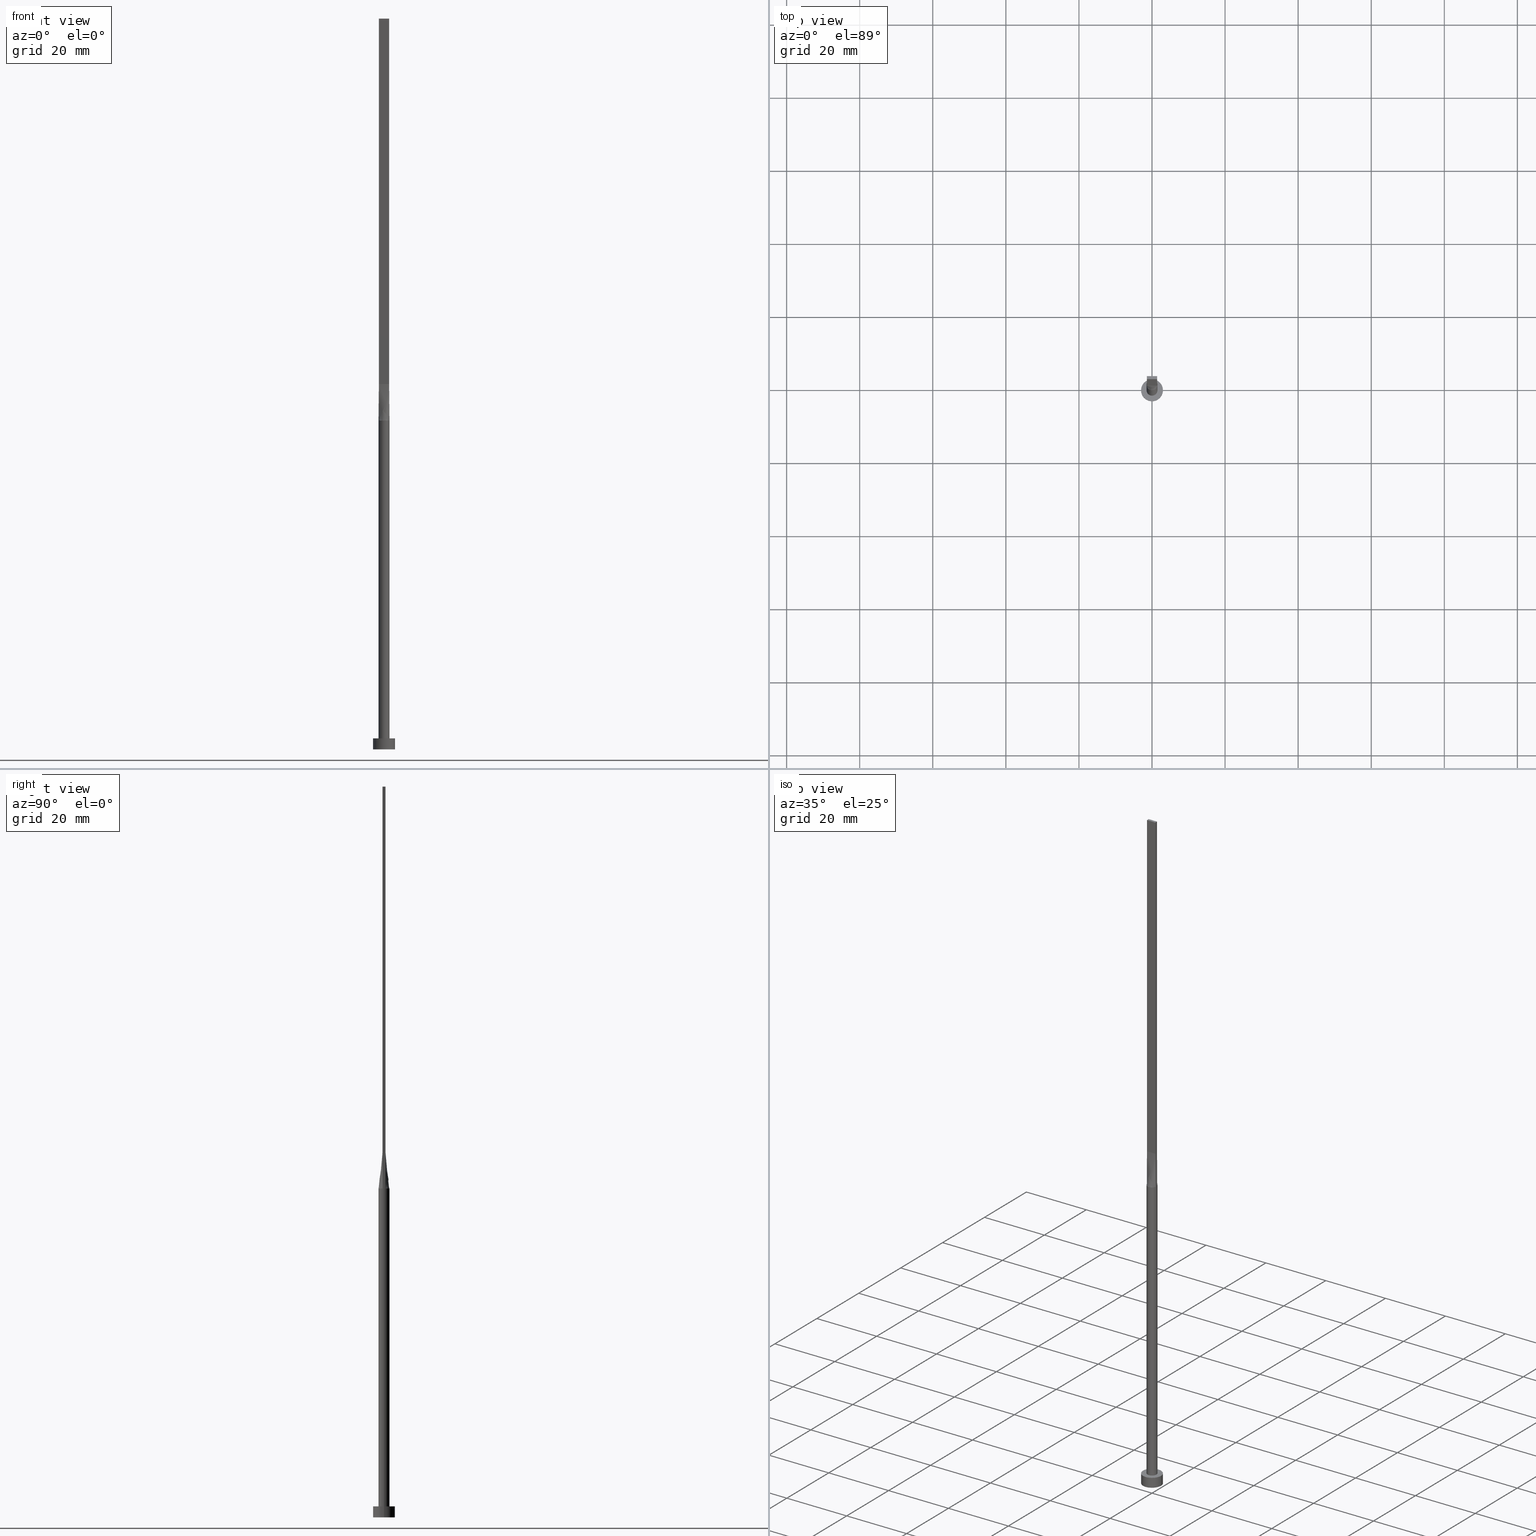
[diagram: canonical four-view strip — front | top / right | iso, engineering-drawing reading convention]
A machine part, canonical four-view strip (front | top / right | iso — engineering-drawing reading convention). The complete STEP part file that produces these views, byte-faithful:
ISO-10303-21;
HEADER;
FILE_DESCRIPTION (( 'STEP AP203' ),
    '1' );
FILE_NAME ('a83f.STEP',
    '2026-02-12T09:08:21',
    ( '' ),
    ( '' ),
    'SwSTEP 2.0',
    'SolidWorks 2019',
    '' );
FILE_SCHEMA (( 'CONFIG_CONTROL_DESIGN' ));
ENDSEC;

DATA;
#1 = DIRECTION ( 'NONE',  ( 0.000000000000000000, 0.000000000000000000, 1.000000000000000000 ) ) ;
#2 = CARTESIAN_POINT ( 'NONE',  ( 0.000000000000000000, 0.000000000000000000, 3.000000000000000000 ) ) ;
#3 = CARTESIAN_POINT ( 'NONE',  ( 0.4666666666666672292, 0.4000000000000001887, 99.99999999999997158 ) ) ;
#4 = DIRECTION ( 'NONE',  ( 1.000000000000000000, 0.000000000000000000, -0.000000000000000000 ) ) ;
#5 = SHAPE_DEFINITION_REPRESENTATION ( #48, #59 ) ;
#6 = DIRECTION ( 'NONE',  ( -2.710505431213761578E-16, -1.000000000000000000, 0.000000000000000000 ) ) ;
#7 = FACE_OUTER_BOUND ( 'NONE', #328, .T. ) ;
#8 = CARTESIAN_POINT ( 'NONE',  ( 1.399999999999999689, 0.4000000000000002442, 99.99999999999998579 ) ) ;
#9 = EDGE_LOOP ( 'NONE', ( #295, #249, #155, #174, #18, #116 ) ) ;
#10 = VECTOR ( 'NONE', #94, 1000.000000000000000 ) ;
#11 = CARTESIAN_POINT ( 'NONE',  ( -1.442387148345315895, 0.4121110244020492197, 90.00000000000000000 ) ) ;
#12 = CARTESIAN_POINT ( 'NONE',  ( -3.000000000000000444, 0.000000000000000000, 0.000000000000000000 ) ) ;
#13 = DIRECTION ( 'NONE',  ( 0.000000000000000000, 0.000000000000000000, 1.000000000000000000 ) ) ;
#14 = CARTESIAN_POINT ( 'NONE',  ( 3.000000000000000444, 3.673940397442060361E-16, 0.000000000000000000 ) ) ;
#15 = ORIENTED_EDGE ( 'NONE', *, *, #384, .T. ) ;
#16 = CIRCLE ( 'NONE', #261, 3.000000000000000444 ) ;
#17 = DIRECTION ( 'NONE',  ( -0.000000000000000000, -0.000000000000000000, -1.000000000000000000 ) ) ;
#18 = ORIENTED_EDGE ( 'NONE', *, *, #268, .T. ) ;
#19 = ORIENTED_EDGE ( 'NONE', *, *, #185, .T. ) ;
#20 = CARTESIAN_POINT ( 'NONE',  ( -1.480021770517838231, 0.2800062201479542878, 89.99999999999998579 ) ) ;
#21 = CC_DESIGN_PERSON_AND_ORGANIZATION_ASSIGNMENT ( #29, #379, ( #545 ) ) ;
#22 = VECTOR ( 'NONE', #478, 1000.000000000000000 ) ;
#23 = ORIENTED_EDGE ( 'NONE', *, *, #173, .T. ) ;
#24 = DIRECTION ( 'NONE',  ( 0.000000000000000000, 0.000000000000000000, 1.000000000000000000 ) ) ;
#25 = CARTESIAN_POINT ( 'NONE',  ( 0.1166666666666677510, -0.3999999999999996336, 99.99999999999995737 ) ) ;
#26 = PERSON_AND_ORGANIZATION ( #509, #394 ) ;
#27 = CARTESIAN_POINT ( 'NONE',  ( 3.000000000000000444, 3.673940397442060361E-16, 3.000000000000000000 ) ) ;
#28 = CARTESIAN_POINT ( 'NONE',  ( 0.7158926189626801939, -1.330660769095147744, 90.00000000000001421 ) ) ;
#29 = PERSON_AND_ORGANIZATION ( #509, #394 ) ;
#30 = ORIENTED_EDGE ( 'NONE', *, *, #529, .F. ) ;
#31 = ORIENTED_EDGE ( 'NONE', *, *, #146, .F. ) ;
#32 = CARTESIAN_POINT ( 'NONE',  ( -0.5833333333333319271, -0.3999999999999996336, 99.99999999999997158 ) ) ;
#33 = PERSON_AND_ORGANIZATION ( #509, #394 ) ;
#34 = CARTESIAN_POINT ( 'NONE',  ( -0.8166666666666654306, -0.3999999999999996336, 99.99999999999997158 ) ) ;
#35 = VECTOR ( 'NONE', #515, 1000.000000000000000 ) ;
#36 = ORIENTED_EDGE ( 'NONE', *, *, #268, .F. ) ;
#37 = ADVANCED_FACE ( 'NONE', ( #315 ), #267, .T. ) ;
#38 = DATE_TIME_ROLE ( 'creation_date' ) ;
#39 = CIRCLE ( 'NONE', #375, 3.000000000000000444 ) ;
#40 = DIRECTION ( 'NONE',  ( -0.000000000000000000, -0.000000000000000000, -1.000000000000000000 ) ) ;
#41 = CARTESIAN_POINT ( 'NONE',  ( -0.5833333333333325932, 0.4000000000000001887, 99.99999999999997158 ) ) ;
#42 = ADVANCED_FACE ( 'NONE', ( #350 ), #95, .T. ) ;
#43 = VECTOR ( 'NONE', #89, 1000.000000000000000 ) ;
#44 = AXIS2_PLACEMENT_3D ( 'NONE', #114, #469, #323 ) ;
#45 = CARTESIAN_POINT ( 'NONE',  ( 1.399999999999999911, -0.2666666666666642760, 99.99999999999997158 ) ) ;
#46 = PLANE ( 'NONE',  #47 ) ;
#47 = AXIS2_PLACEMENT_3D ( 'NONE', #499, #398, #4 ) ;
#48 = PRODUCT_DEFINITION_SHAPE ( 'NONE', 'NONE',  #579 ) ;
#49 = CARTESIAN_POINT ( 'NONE',  ( -1.500000000000000222, 0.000000000000000000, 90.00000000000000000 ) ) ;
#50 = LINE ( 'NONE', #439, #189 ) ;
#51 = ADVANCED_FACE ( 'NONE', ( #388 ), #527, .T. ) ;
#52 = FACE_OUTER_BOUND ( 'NONE', #410, .T. ) ;
#53 = ORIENTED_EDGE ( 'NONE', *, *, #294, .F. ) ;
#54 = CARTESIAN_POINT ( 'NONE',  ( -1.399999999999999689, 0.4000000000000002442, 200.0000000000000000 ) ) ;
#55 = CARTESIAN_POINT ( 'NONE',  ( -1.442285921461235132, -0.4120816918460665224, 90.00000000000000000 ) ) ;
#56 = CARTESIAN_POINT ( 'NONE',  ( -1.399999999999999689, 0.4000000000000002442, 200.0000000000000000 ) ) ;
#57 = DIRECTION ( 'NONE',  ( 1.000000000000000000, -5.808225924029488744E-17, 0.000000000000000000 ) ) ;
#58 = VECTOR ( 'NONE', #523, 1000.000000000000000 ) ;
#59 = ADVANCED_BREP_SHAPE_REPRESENTATION ( 'a83f', ( #566, #463 ), #113 ) ;
#60 = APPROVAL_PERSON_ORGANIZATION ( #33, #301, #383 ) ;
#61 = CARTESIAN_POINT ( 'NONE',  ( -0.1885753531885899226, 1.500000000000000888, 90.00000000000001421 ) ) ;
#62 = ORIENTED_EDGE ( 'NONE', *, *, #518, .F. ) ;
#63 = CARTESIAN_POINT ( 'NONE',  ( -1.212111761082482975, 0.8950936653899578266, 90.00000000000002842 ) ) ;
#64 = CC_DESIGN_PERSON_AND_ORGANIZATION_ASSIGNMENT ( #69, #436, ( #229 ) ) ;
#65 = CARTESIAN_POINT ( 'NONE',  ( 1.166666666666666963, -0.3999999999999997446, 99.99999999999997158 ) ) ;
#66 = ORIENTED_EDGE ( 'NONE', *, *, #540, .T. ) ;
#67 = ORIENTED_EDGE ( 'NONE', *, *, #325, .F. ) ;
#68 = CARTESIAN_POINT ( 'NONE',  ( 1.399999999999999689, 0.4000000000000002442, 200.0000000000000000 ) ) ;
#69 = PERSON_AND_ORGANIZATION ( #509, #394 ) ;
#70 = EDGE_CURVE ( 'NONE', #302, #371, #222, .T. ) ;
#71 = CARTESIAN_POINT ( 'NONE',  ( 0.1885753531885901724, 1.500000000000000666, 90.00000000000001421 ) ) ;
#72 = VECTOR ( 'NONE', #332, 1000.000000000000000 ) ;
#73 = VERTEX_POINT ( 'NONE', #134 ) ;
#74 = DIRECTION ( 'NONE',  ( -0.000000000000000000, -0.000000000000000000, -1.000000000000000000 ) ) ;
#75 = CARTESIAN_POINT ( 'NONE',  ( 0.2333333333333345305, -0.3999999999999996891, 99.99999999999997158 ) ) ;
#76 = CALENDAR_DATE ( 2026, 12, 2 ) ;
#77 = CIRCLE ( 'NONE', #161, 1.500000000000000222 ) ;
#78 = ORIENTED_EDGE ( 'NONE', *, *, #224, .F. ) ;
#79 = LINE ( 'NONE', #27, #22 ) ;
#80 = DIRECTION ( 'NONE',  ( 1.000000000000000000, 0.000000000000000000, 0.000000000000000000 ) ) ;
#81 = APPLICATION_PROTOCOL_DEFINITION ( 'international standard', 'config_control_design', 1994, #453 ) ;
#82 = DIRECTION ( 'NONE',  ( 0.000000000000000000, 0.000000000000000000, 1.000000000000000000 ) ) ;
#83 = EDGE_CURVE ( 'NONE', #506, #557, #310, .T. ) ;
#84 = CIRCLE ( 'NONE', #442, 1.500000000000000222 ) ;
#85 = B_SPLINE_SURFACE_WITH_KNOTS ( 'NONE', 3, 1, ( 
 ( #188, #489 ),
 ( #441, #45 ),
 ( #230, #449 ),
 ( #395, #356 ),
 ( #101, #181 ),
 ( #541, #90 ) ),
 .UNSPECIFIED., .F., .F., .F.,
 ( 4, 2, 4 ),
 ( 2, 2 ),
 ( 0.000000000000000000, 0.5000000000000000000, 1.000000000000000000 ),
 ( 0.000000000000000000, 1.000000000000000000 ),
 .UNSPECIFIED. ) ;
#86 = CARTESIAN_POINT ( 'NONE',  ( 1.442285921461234910, -0.4120816918460670220, 90.00000000000000000 ) ) ;
#87 = CARTESIAN_POINT ( 'NONE',  ( 0.000000000000000000, 0.000000000000000000, 90.00000000000000000 ) ) ;
#88 = CARTESIAN_POINT ( 'NONE',  ( 0.000000000000000000, 0.000000000000000000, 3.000000000000000000 ) ) ;
#89 = DIRECTION ( 'NONE',  ( -0.000000000000000000, -0.000000000000000000, -1.000000000000000000 ) ) ;
#90 = CARTESIAN_POINT ( 'NONE',  ( 1.399999999999999689, 0.4000000000000002442, 99.99999999999998579 ) ) ;
#91 = ADVANCED_FACE ( 'NONE', ( #387 ), #443, .T. ) ;
#92 = B_SPLINE_CURVE_WITH_KNOTS ( 'NONE', 3,
 ( #193, #362, #151, #465, #372, #104, #319, #454, #196, #61, #290, #507, #321, #199, #63, #508, #111, #512 ),
 .UNSPECIFIED., .F., .F.,
 ( 4, 2, 2, 2, 2, 2, 2, 2, 4 ),
 ( 0.000000000000000000, 0.1250000000000000833, 0.2500000000000001665, 0.3750000000000001110, 0.5000000000000001110, 0.6250000000000002220, 0.7500000000000001110, 0.8750000000000001110, 1.000000000000000000 ),
 .UNSPECIFIED. ) ;
#93 = LINE ( 'NONE', #274, #207 ) ;
#94 = DIRECTION ( 'NONE',  ( 0.004228551254826032335, -0.001208157501378839338, 0.9999903298081123104 ) ) ;
#95 = CYLINDRICAL_SURFACE ( 'NONE', #275, 1.500000000000000222 ) ;
#96 = CARTESIAN_POINT ( 'NONE',  ( 1.399999999999999689, 0.4000000000000002442, 99.99999999999998579 ) ) ;
#97 = CIRCLE ( 'NONE', #242, 1.500000000000000222 ) ;
#98 = CARTESIAN_POINT ( 'NONE',  ( 0.9333333333333333481, 0.4000000000000001332, 99.99999999999995737 ) ) ;
#99 = CARTESIAN_POINT ( 'NONE',  ( -1.212111761082482975, 0.8950936653899578266, 90.00000000000002842 ) ) ;
#100 = CARTESIAN_POINT ( 'NONE',  ( 1.212111761082483197, 0.8950936653899574935, 89.99999999999998579 ) ) ;
#101 = CARTESIAN_POINT ( 'NONE',  ( 1.480021770517838897, 0.2800062201479540103, 90.00000000000000000 ) ) ;
#102 = EDGE_CURVE ( 'NONE', #371, #197, #97, .T. ) ;
#103 = CARTESIAN_POINT ( 'NONE',  ( -0.9333333333333326820, 0.4000000000000001887, 99.99999999999997158 ) ) ;
#104 = CARTESIAN_POINT ( 'NONE',  ( 0.8665786268839186235, 1.235433898681765008, 90.00000000000000000 ) ) ;
#105 = CC_DESIGN_APPROVAL ( #369, ( #229 ) ) ;
#106 = CARTESIAN_POINT ( 'NONE',  ( -0.7158926189626803049, 1.330660769095148410, 90.00000000000001421 ) ) ;
#107 = CARTESIAN_POINT ( 'NONE',  ( -1.399999999999999689, 0.4000000000000002442, 200.0000000000000000 ) ) ;
#108 = EDGE_CURVE ( 'NONE', #209, #218, #77, .T. ) ;
#109 = CARTESIAN_POINT ( 'NONE',  ( 1.399999999999999911, -0.3999999999999998002, 200.0000000000000000 ) ) ;
#110 = UNCERTAINTY_MEASURE_WITH_UNIT (LENGTH_MEASURE( 1.000000000000000082E-05 ), #307, 'distance_accuracy_value', 'NONE');
#111 = CARTESIAN_POINT ( 'NONE',  ( -1.409267053536706671, 0.5276477295819163027, 90.00000000000001421 ) ) ;
#112 = CARTESIAN_POINT ( 'NONE',  ( 0.000000000000000000, 0.000000000000000000, 3.000000000000000000 ) ) ;
#113 =( GEOMETRIC_REPRESENTATION_CONTEXT ( 3 ) GLOBAL_UNCERTAINTY_ASSIGNED_CONTEXT ( ( #110 ) ) GLOBAL_UNIT_ASSIGNED_CONTEXT ( ( #307, #528, #270 ) ) REPRESENTATION_CONTEXT ( 'NONE', 'WORKASPACE' ) );
#114 = CARTESIAN_POINT ( 'NONE',  ( -1.399999999999999689, 0.4000000000000002442, 200.0000000000000000 ) ) ;
#115 = CARTESIAN_POINT ( 'NONE',  ( 1.409267053536706671, -0.5276477295819165247, 90.00000000000001421 ) ) ;
#116 = ORIENTED_EDGE ( 'NONE', *, *, #553, .T. ) ;
#117 = ORIENTED_EDGE ( 'NONE', *, *, #102, .T. ) ;
#118 = LINE ( 'NONE', #211, #320 ) ;
#119 = ORIENTED_EDGE ( 'NONE', *, *, #511, .F. ) ;
#120 = DIRECTION ( 'NONE',  ( 1.000000000000000000, 0.000000000000000000, 0.000000000000000000 ) ) ;
#121 = CARTESIAN_POINT ( 'NONE',  ( 1.359280768448766663, -0.6502025712814719638, 90.00000000000001421 ) ) ;
#122 = AXIS2_PLACEMENT_3D ( 'NONE', #334, #427, #517 ) ;
#123 = VERTEX_POINT ( 'NONE', #54 ) ;
#124 = ORIENTED_EDGE ( 'NONE', *, *, #536, .F. ) ;
#125 = LINE ( 'NONE', #338, #58 ) ;
#126 = CARTESIAN_POINT ( 'NONE',  ( 0.8166666666666670960, -0.3999999999999997446, 99.99999999999997158 ) ) ;
#127 = APPROVAL_STATUS ( 'not_yet_approved' ) ;
#128 = EDGE_LOOP ( 'NONE', ( #53, #214, #117, #36, #550, #159 ) ) ;
#129 = CIRCLE ( 'NONE', #516, 1.500000000000000222 ) ;
#130 = ORIENTED_EDGE ( 'NONE', *, *, #250, .F. ) ;
#131 = CARTESIAN_POINT ( 'NONE',  ( 0.000000000000000000, 0.000000000000000000, 0.000000000000000000 ) ) ;
#132 = CARTESIAN_POINT ( 'NONE',  ( -1.399999999999999911, -0.3999999999999996336, 99.99999999999998579 ) ) ;
#133 = EDGE_CURVE ( 'NONE', #152, #380, #16, .T. ) ;
#134 = CARTESIAN_POINT ( 'NONE',  ( -1.500000000000000222, 8.735352324927310277E-17, 90.00000000000000000 ) ) ;
#135 = PERSON_AND_ORGANIZATION ( #509, #394 ) ;
#136 = DIRECTION ( 'NONE',  ( -0.000000000000000000, -0.000000000000000000, -1.000000000000000000 ) ) ;
#137 = DIRECTION ( 'NONE',  ( -1.000000000000000000, 0.000000000000000000, 0.000000000000000000 ) ) ;
#138 = CARTESIAN_POINT ( 'NONE',  ( 1.442285921461234910, 0.4120816918460671330, 90.00000000000000000 ) ) ;
#139 = CARTESIAN_POINT ( 'NONE',  ( -0.8166666666666659857, 0.4000000000000001887, 99.99999999999997158 ) ) ;
#140 = DIRECTION ( 'NONE',  ( 1.000000000000000000, 0.000000000000000000, 0.000000000000000000 ) ) ;
#141 = DIRECTION ( 'NONE',  ( 5.808225924029488744E-17, 1.000000000000000000, -0.000000000000000000 ) ) ;
#142 = ORIENTED_EDGE ( 'NONE', *, *, #511, .T. ) ;
#143 = CARTESIAN_POINT ( 'NONE',  ( 0.000000000000000000, 0.000000000000000000, 90.00000000000000000 ) ) ;
#144 = CARTESIAN_POINT ( 'NONE',  ( -1.399999999999999911, -0.3999999999999996336, 99.99999999999998579 ) ) ;
#145 = CARTESIAN_POINT ( 'NONE',  ( -0.8665786268839184014, 1.235433898681765896, 90.00000000000001421 ) ) ;
#146 = EDGE_CURVE ( 'NONE', #381, #557, #406, .T. ) ;
#147 = CARTESIAN_POINT ( 'NONE',  ( -1.399999999999999689, -0.1333333333333329429, 99.99999999999997158 ) ) ;
#148 = CIRCLE ( 'NONE', #411, 1.500000000000000222 ) ;
#149 = ORIENTED_EDGE ( 'NONE', *, *, #83, .T. ) ;
#150 = ORIENTED_EDGE ( 'NONE', *, *, #325, .T. ) ;
#151 = CARTESIAN_POINT ( 'NONE',  ( 1.359280768448766663, 0.6502025712814714087, 89.99999999999998579 ) ) ;
#152 = VERTEX_POINT ( 'NONE', #12 ) ;
#153 = FACE_OUTER_BOUND ( 'NONE', #240, .T. ) ;
#154 = DIRECTION ( 'NONE',  ( 1.000000000000000000, -5.808225924029488744E-17, 0.000000000000000000 ) ) ;
#155 = ORIENTED_EDGE ( 'NONE', *, *, #108, .F. ) ;
#156 = CC_DESIGN_SECURITY_CLASSIFICATION ( #545, ( #229 ) ) ;
#157 = ADVANCED_FACE ( 'NONE', ( #7 ), #503, .F. ) ;
#158 = DESIGN_CONTEXT ( 'detailed design', #453, 'design' ) ;
#159 = ORIENTED_EDGE ( 'NONE', *, *, #384, .F. ) ;
#160 = DIRECTION ( 'NONE',  ( 1.000000000000000000, 5.329070518200751394E-15, 0.000000000000000000 ) ) ;
#161 = AXIS2_PLACEMENT_3D ( 'NONE', #87, #500, #404 ) ;
#162 = ORIENTED_EDGE ( 'NONE', *, *, #83, .F. ) ;
#163 = ORIENTED_EDGE ( 'NONE', *, *, #272, .T. ) ;
#164 = LINE ( 'NONE', #303, #504 ) ;
#165 = CARTESIAN_POINT ( 'NONE',  ( 0.5833333333333342585, -0.3999999999999997446, 99.99999999999997158 ) ) ;
#166 = DATE_AND_TIME ( #389, #382 ) ;
#167 = CARTESIAN_POINT ( 'NONE',  ( 0.2333333333333343085, 0.4000000000000001887, 99.99999999999995737 ) ) ;
#168 = ORIENTED_EDGE ( 'NONE', *, *, #250, .T. ) ;
#169 = CARTESIAN_POINT ( 'NONE',  ( 0.000000000000000000, 0.000000000000000000, 90.00000000000000000 ) ) ;
#170 = CALENDAR_DATE ( 2026, 12, 2 ) ;
#171 = APPROVAL_PERSON_ORGANIZATION ( #135, #456, #569 ) ;
#172 = VERTEX_POINT ( 'NONE', #364 ) ;
#173 = EDGE_CURVE ( 'NONE', #73, #209, #470, .T. ) ;
#174 = ORIENTED_EDGE ( 'NONE', *, *, #173, .F. ) ;
#175 = DATE_AND_TIME ( #386, #257 ) ;
#176 = DIRECTION ( 'NONE',  ( -0.000000000000000000, -0.000000000000000000, -1.000000000000000000 ) ) ;
#177 = CC_DESIGN_PERSON_AND_ORGANIZATION_ASSIGNMENT ( #263, #264, ( #229 ) ) ;
#178 = CARTESIAN_POINT ( 'NONE',  ( -0.8665786268839192896, -1.235433898681764786, 90.00000000000000000 ) ) ;
#179 = DIRECTION ( 'NONE',  ( 1.000000000000000000, 0.000000000000000000, 0.000000000000000000 ) ) ;
#180 = DIRECTION ( 'NONE',  ( -2.710505431213761085E-16, 1.000000000000000000, -0.000000000000000000 ) ) ;
#181 = CARTESIAN_POINT ( 'NONE',  ( 1.399999999999999689, 0.2666666666666690499, 99.99999999999997158 ) ) ;
#182 = CARTESIAN_POINT ( 'NONE',  ( 1.359280768448766663, 0.6502025712814714087, 89.99999999999998579 ) ) ;
#183 = CARTESIAN_POINT ( 'NONE',  ( -1.114527776139989212, 1.017390422009414319, 90.00000000000004263 ) ) ;
#184 = DIRECTION ( 'NONE',  ( -1.000000000000000000, 5.808225924029488744E-17, 0.000000000000000000 ) ) ;
#185 = EDGE_CURVE ( 'NONE', #123, #385, #192, .T. ) ;
#186 = DIRECTION ( 'NONE',  ( 1.000000000000000000, 0.000000000000000000, 0.000000000000000000 ) ) ;
#187 = CARTESIAN_POINT ( 'NONE',  ( 0.8665786268839186235, 1.235433898681765008, 90.00000000000000000 ) ) ;
#188 = CARTESIAN_POINT ( 'NONE',  ( 1.442285921461234688, -0.4120816918460675771, 90.00000000000000000 ) ) ;
#189 = VECTOR ( 'NONE', #349, 1000.000000000000000 ) ;
#190 = PRODUCT_RELATED_PRODUCT_CATEGORY ( 'detail', '', ( #397 ) ) ;
#191 = DIRECTION ( 'NONE',  ( 0.000000000000000000, 0.000000000000000000, 1.000000000000000000 ) ) ;
#192 = LINE ( 'NONE', #56, #539 ) ;
#193 = CARTESIAN_POINT ( 'NONE',  ( 1.442362338805188937, 0.4121038472597355895, 90.00000000000000000 ) ) ;
#194 = AXIS2_PLACEMENT_3D ( 'NONE', #549, #246, #547 ) ;
#195 = PLANE ( 'NONE',  #484 ) ;
#196 = CARTESIAN_POINT ( 'NONE',  ( 0.1885753531885901724, 1.500000000000000666, 90.00000000000001421 ) ) ;
#197 = VERTEX_POINT ( 'NONE', #407 ) ;
#198 = DATE_AND_TIME ( #292, #435 ) ;
#199 = CARTESIAN_POINT ( 'NONE',  ( -1.114527776139989212, 1.017390422009414319, 90.00000000000004263 ) ) ;
#200 = ADVANCED_FACE ( 'NONE', ( #360 ), #195, .F. ) ;
#201 = CARTESIAN_POINT ( 'NONE',  ( -1.399999999999999689, 0.2666666666666668850, 99.99999999999997158 ) ) ;
#202 = VECTOR ( 'NONE', #367, 1000.000000000000000 ) ;
#203 = CARTESIAN_POINT ( 'NONE',  ( -0.3767059690781846548, 1.463302066271692015, 90.00000000000000000 ) ) ;
#204 = CIRCLE ( 'NONE', #446, 3.000000000000000444 ) ;
#205 = CARTESIAN_POINT ( 'NONE',  ( 0.000000000000000000, 0.000000000000000000, 3.000000000000000000 ) ) ;
#206 = COORDINATED_UNIVERSAL_TIME_OFFSET ( 1, 0, .AHEAD. ) ;
#207 = VECTOR ( 'NONE', #6, 1000.000000000000000 ) ;
#208 = CC_DESIGN_PERSON_AND_ORGANIZATION_ASSIGNMENT ( #26, #213, ( #397 ) ) ;
#209 = VERTEX_POINT ( 'NONE', #228 ) ;
#210 = ORIENTED_EDGE ( 'NONE', *, *, #536, .T. ) ;
#211 = CARTESIAN_POINT ( 'NONE',  ( 1.399999999999999689, 0.4000000000000002442, 200.0000000000000000 ) ) ;
#212 = CARTESIAN_POINT ( 'NONE',  ( 0.9333333333333337922, -0.3999999999999997446, 99.99999999999997158 ) ) ;
#213 = PERSON_AND_ORGANIZATION_ROLE ( 'design_owner' ) ;
#214 = ORIENTED_EDGE ( 'NONE', *, *, #70, .T. ) ;
#215 = ORIENTED_EDGE ( 'NONE', *, *, #574, .T. ) ;
#216 = APPROVAL_STATUS ( 'not_yet_approved' ) ;
#217 = VECTOR ( 'NONE', #564, 1000.000000000000000 ) ;
#218 = VERTEX_POINT ( 'NONE', #578 ) ;
#219 = CARTESIAN_POINT ( 'NONE',  ( 1.399999999999999911, -0.3999999999999998002, 99.99999999999998579 ) ) ;
#220 = PERSON_AND_ORGANIZATION_ROLE ( 'creator' ) ;
#221 = AXIS2_PLACEMENT_3D ( 'NONE', #289, #13, #460 ) ;
#222 = LINE ( 'NONE', #269, #43 ) ;
#223 = APPLICATION_PROTOCOL_DEFINITION ( 'international standard', 'config_control_design', 1994, #447 ) ;
#224 = EDGE_CURVE ( 'NONE', #482, #381, #391, .T. ) ;
#225 = CARTESIAN_POINT ( 'NONE',  ( -1.212111761082483863, -0.8950936653899566053, 89.99999999999998579 ) ) ;
#226 = DIRECTION ( 'NONE',  ( 0.000000000000000000, -0.000000000000000000, -1.000000000000000000 ) ) ;
#227 = CARTESIAN_POINT ( 'NONE',  ( 1.399999999999999689, 0.4000000000000002442, 200.0000000000000000 ) ) ;
#228 = CARTESIAN_POINT ( 'NONE',  ( -1.442368678646663405, -0.4121057215347019853, 90.00000000000000000 ) ) ;
#229 = PRODUCT_DEFINITION_FORMATION_WITH_SPECIFIED_SOURCE ( 'LIBOVOLN�', '', #397, .NOT_KNOWN. ) ;
#230 = CARTESIAN_POINT ( 'NONE',  ( 1.500000000000000222, -0.1400549446402594711, 90.00000000000001421 ) ) ;
#231 = CARTESIAN_POINT ( 'NONE',  ( -1.399999999999999911, -0.3999999999999996336, 200.0000000000000000 ) ) ;
#232 = B_SPLINE_SURFACE_WITH_KNOTS ( 'NONE', 3, 1, ( 
 ( #138, #96 ),
 ( #491, #396 ),
 ( #182, #316 ),
 ( #100, #98 ),
 ( #402, #277 ),
 ( #187, #444 ),
 ( #448, #3 ),
 ( #476, #167 ),
 ( #71, #420 ),
 ( #425, #298 ),
 ( #203, #472 ),
 ( #106, #282 ),
 ( #145, #41 ),
 ( #183, #139 ),
 ( #99, #103 ),
 ( #352, #531 ),
 ( #273, #318 ),
 ( #580, #234 ) ),
 .UNSPECIFIED., .F., .F., .F.,
 ( 4, 2, 2, 2, 2, 2, 2, 2, 4 ),
 ( 2, 2 ),
 ( 0.000000000000000000, 0.1250000000000000833, 0.2500000000000001665, 0.3750000000000001110, 0.5000000000000001110, 0.6250000000000002220, 0.7500000000000001110, 0.8750000000000001110, 1.000000000000000000 ),
 ( 0.000000000000000000, 1.000000000000000000 ),
 .UNSPECIFIED. ) ;
#233 = CARTESIAN_POINT ( 'NONE',  ( 1.421142960730617411, -0.4060408459230334111, 95.00000000000000000 ) ) ;
#234 = CARTESIAN_POINT ( 'NONE',  ( -1.399999999999999689, 0.4000000000000002442, 99.99999999999998579 ) ) ;
#235 = ADVANCED_FACE ( 'NONE', ( #575 ), #232, .T. ) ;
#236 = CARTESIAN_POINT ( 'NONE',  ( -1.500000000000000222, 0.1400549446402596099, 90.00000000000001421 ) ) ;
#237 = ORIENTED_EDGE ( 'NONE', *, *, #529, .T. ) ;
#238 = DIRECTION ( 'NONE',  ( 0.000000000000000000, 0.000000000000000000, 1.000000000000000000 ) ) ;
#239 = CARTESIAN_POINT ( 'NONE',  ( -1.399999999999999911, -0.3999999999999994671, 99.99999999999998579 ) ) ;
#240 = EDGE_LOOP ( 'NONE', ( #163, #142 ) ) ;
#241 = DIRECTION ( 'NONE',  ( -1.000000000000000000, -0.000000000000000000, -0.000000000000000000 ) ) ;
#242 = AXIS2_PLACEMENT_3D ( 'NONE', #2, #82, #266 ) ;
#243 = CYLINDRICAL_SURFACE ( 'NONE', #576, 1.500000000000000222 ) ;
#244 = AXIS2_PLACEMENT_3D ( 'NONE', #131, #374, #561 ) ;
#245 = EDGE_LOOP ( 'NONE', ( #15, #149, #31, #467 ) ) ;
#246 = DIRECTION ( 'NONE',  ( 0.000000000000000000, 0.000000000000000000, 1.000000000000000000 ) ) ;
#247 = CARTESIAN_POINT ( 'NONE',  ( -0.2333333333333321713, -0.3999999999999996336, 99.99999999999995737 ) ) ;
#248 = ORIENTED_EDGE ( 'NONE', *, *, #146, .T. ) ;
#249 = ORIENTED_EDGE ( 'NONE', *, *, #571, .F. ) ;
#250 = EDGE_CURVE ( 'NONE', #548, #123, #535, .T. ) ;
#251 = CARTESIAN_POINT ( 'NONE',  ( -1.442285921461234688, 0.4120816918460674105, 90.00000000000000000 ) ) ;
#252 = ORIENTED_EDGE ( 'NONE', *, *, #224, .T. ) ;
#253 = VERTEX_POINT ( 'NONE', #353 ) ;
#254 = CARTESIAN_POINT ( 'NONE',  ( 1.399999999999999911, -0.3999999999999998002, 200.0000000000000000 ) ) ;
#255 = CARTESIAN_POINT ( 'NONE',  ( 0.1885753531885892564, -1.499999999999999778, 89.99999999999997158 ) ) ;
#256 = MECHANICAL_CONTEXT ( 'NONE', #447, 'mechanical' ) ;
#257 = LOCAL_TIME ( 10, 8, 21.00000000000000000, #428 ) ;
#258 = CC_DESIGN_DATE_AND_TIME_ASSIGNMENT ( #166, #38, ( #579 ) ) ;
#259 = FACE_OUTER_BOUND ( 'NONE', #288, .T. ) ;
#260 = PERSON_AND_ORGANIZATION ( #509, #394 ) ;
#261 = AXIS2_PLACEMENT_3D ( 'NONE', #285, #238, #186 ) ;
#262 = ORIENTED_EDGE ( 'NONE', *, *, #540, .F. ) ;
#263 = PERSON_AND_ORGANIZATION ( #509, #394 ) ;
#264 = PERSON_AND_ORGANIZATION_ROLE ( 'creator' ) ;
#265 = AXIS2_PLACEMENT_3D ( 'NONE', #112, #191, #459 ) ;
#266 = DIRECTION ( 'NONE',  ( 1.000000000000000000, 0.000000000000000000, 0.000000000000000000 ) ) ;
#267 = CYLINDRICAL_SURFACE ( 'NONE', #521, 3.000000000000000444 ) ;
#268 = EDGE_CURVE ( 'NONE', #73, #197, #538, .T. ) ;
#269 = CARTESIAN_POINT ( 'NONE',  ( 1.500000000000000222, 1.836970198721030181E-16, 90.00000000000000000 ) ) ;
#270 =( NAMED_UNIT ( * ) SI_UNIT ( $, .STERADIAN. ) SOLID_ANGLE_UNIT ( ) );
#271 = CARTESIAN_POINT ( 'NONE',  ( -1.359280768448767551, -0.6502025712814705205, 89.99999999999998579 ) ) ;
#272 = EDGE_CURVE ( 'NONE', #172, #330, #39, .T. ) ;
#273 = CARTESIAN_POINT ( 'NONE',  ( -1.409267053536706671, 0.5276477295819163027, 90.00000000000001421 ) ) ;
#274 = CARTESIAN_POINT ( 'NONE',  ( -1.399999999999999689, 0.4000000000000002442, 99.99999999999998579 ) ) ;
#275 = AXIS2_PLACEMENT_3D ( 'NONE', #343, #40, #432 ) ;
#276 = CARTESIAN_POINT ( 'NONE',  ( -1.166666666666665853, -0.3999999999999996336, 99.99999999999995737 ) ) ;
#277 = CARTESIAN_POINT ( 'NONE',  ( 0.8166666666666666519, 0.4000000000000001887, 99.99999999999997158 ) ) ;
#278 = DIRECTION ( 'NONE',  ( -0.000000000000000000, -0.000000000000000000, -1.000000000000000000 ) ) ;
#279 = LINE ( 'NONE', #231, #346 ) ;
#280 = EDGE_CURVE ( 'NONE', #253, #381, #50, .T. ) ;
#281 = CARTESIAN_POINT ( 'NONE',  ( 1.399999999999999911, -0.3999999999999998002, 200.0000000000000000 ) ) ;
#282 = CARTESIAN_POINT ( 'NONE',  ( -0.4666666666666659524, 0.4000000000000001887, 99.99999999999997158 ) ) ;
#283 = FACE_OUTER_BOUND ( 'NONE', #337, .T. ) ;
#284 = ADVANCED_FACE ( 'NONE', ( #492 ), #46, .T. ) ;
#285 = CARTESIAN_POINT ( 'NONE',  ( 0.000000000000000000, 0.000000000000000000, 0.000000000000000000 ) ) ;
#286 = DIRECTION ( 'NONE',  ( 2.710505431213761085E-16, -1.000000000000000000, 0.000000000000000000 ) ) ;
#287 = CARTESIAN_POINT ( 'NONE',  ( -1.399999999999999911, -0.2666666666666662189, 99.99999999999997158 ) ) ;
#288 = EDGE_LOOP ( 'NONE', ( #434, #486 ) ) ;
#289 = CARTESIAN_POINT ( 'NONE',  ( 0.000000000000000000, 0.000000000000000000, 90.00000000000000000 ) ) ;
#290 = CARTESIAN_POINT ( 'NONE',  ( -0.3767059690781846548, 1.463302066271692015, 90.00000000000000000 ) ) ;
#291 = VERTEX_POINT ( 'NONE', #281 ) ;
#292 = CALENDAR_DATE ( 2026, 12, 2 ) ;
#293 = DIRECTION ( 'NONE',  ( -1.000000000000000000, 0.000000000000000000, 0.000000000000000000 ) ) ;
#294 = EDGE_CURVE ( 'NONE', #302, #253, #129, .T. ) ;
#295 = ORIENTED_EDGE ( 'NONE', *, *, #70, .F. ) ;
#296 = CARTESIAN_POINT ( 'NONE',  ( -1.399999999999999911, -0.3999999999999996336, 99.99999999999998579 ) ) ;
#297 = VECTOR ( 'NONE', #393, 1000.000000000000000 ) ;
#298 = CARTESIAN_POINT ( 'NONE',  ( -0.1166666666666655722, 0.4000000000000001887, 99.99999999999997158 ) ) ;
#299 = ORIENTED_EDGE ( 'NONE', *, *, #542, .T. ) ;
#300 = LINE ( 'NONE', #473, #72 ) ;
#301 = APPROVAL ( #216, 'NEUR�EN�' ) ;
#302 = VERTEX_POINT ( 'NONE', #311 ) ;
#303 = CARTESIAN_POINT ( 'NONE',  ( -3.000000000000000444, 0.000000000000000000, 3.000000000000000000 ) ) ;
#304 = DATE_AND_TIME ( #76, #568 ) ;
#305 = CIRCLE ( 'NONE', #194, 1.500000000000000222 ) ;
#306 = PLANE ( 'NONE',  #244 ) ;
#307 =( LENGTH_UNIT ( ) NAMED_UNIT ( * ) SI_UNIT ( .MILLI., .METRE. ) );
#308 = VECTOR ( 'NONE', #278, 1000.000000000000000 ) ;
#309 = ORIENTED_EDGE ( 'NONE', *, *, #108, .T. ) ;
#310 = LINE ( 'NONE', #347, #10 ) ;
#311 = CARTESIAN_POINT ( 'NONE',  ( 1.500000000000000000, -9.795443734464536283E-18, 90.00000000000000000 ) ) ;
#312 = DIRECTION ( 'NONE',  ( 0.000000000000000000, 0.000000000000000000, 1.000000000000000000 ) ) ;
#313 = ADVANCED_FACE ( 'NONE', ( #450 ), #403, .F. ) ;
#314 = LINE ( 'NONE', #233, #355 ) ;
#315 = FACE_OUTER_BOUND ( 'NONE', #462, .T. ) ;
#316 = CARTESIAN_POINT ( 'NONE',  ( 1.166666666666666519, 0.4000000000000001332, 99.99999999999995737 ) ) ;
#317 = FACE_OUTER_BOUND ( 'NONE', #421, .T. ) ;
#318 = CARTESIAN_POINT ( 'NONE',  ( -1.283333333333332993, 0.4000000000000002442, 99.99999999999998579 ) ) ;
#319 = CARTESIAN_POINT ( 'NONE',  ( 0.7158926189626808601, 1.330660769095147966, 89.99999999999998579 ) ) ;
#320 = VECTOR ( 'NONE', #559, 1000.000000000000000 ) ;
#321 = CARTESIAN_POINT ( 'NONE',  ( -0.8665786268839184014, 1.235433898681765896, 90.00000000000001421 ) ) ;
#322 = DIRECTION ( 'NONE',  ( -1.000000000000000000, -2.710505431213761085E-16, 0.000000000000000000 ) ) ;
#323 = DIRECTION ( 'NONE',  ( 2.710505431213761578E-16, 1.000000000000000000, 0.000000000000000000 ) ) ;
#324 = CARTESIAN_POINT ( 'NONE',  ( -1.399999999999999911, -0.3999999999999996336, 200.0000000000000000 ) ) ;
#325 = EDGE_CURVE ( 'NONE', #557, #477, #93, .T. ) ;
#326 = PLANE ( 'NONE',  #44 ) ;
#327 = CIRCLE ( 'NONE', #122, 3.000000000000000444 ) ;
#328 = EDGE_LOOP ( 'NONE', ( #252, #62, #262, #237 ) ) ;
#329 = ADVANCED_FACE ( 'NONE', ( #317 ), #85, .T. ) ;
#330 = VERTEX_POINT ( 'NONE', #351 ) ;
#331 = ORIENTED_EDGE ( 'NONE', *, *, #553, .F. ) ;
#332 = DIRECTION ( 'NONE',  ( -0.004228551254826054019, -0.001208157501378828496, -0.9999903298081123104 ) ) ;
#333 = ORIENTED_EDGE ( 'NONE', *, *, #354, .T. ) ;
#334 = CARTESIAN_POINT ( 'NONE',  ( 0.000000000000000000, 0.000000000000000000, 3.000000000000000000 ) ) ;
#335 = CARTESIAN_POINT ( 'NONE',  ( 1.212111761082483197, -0.8950936653899579376, 90.00000000000001421 ) ) ;
#336 = ORIENTED_EDGE ( 'NONE', *, *, #571, .T. ) ;
#337 = EDGE_LOOP ( 'NONE', ( #150, #514, #481, #368 ) ) ;
#338 = CARTESIAN_POINT ( 'NONE',  ( -1.399999999999999911, -0.3999999999999996336, 200.0000000000000000 ) ) ;
#339 = CARTESIAN_POINT ( 'NONE',  ( 1.114527776139989435, -1.017390422009414541, 90.00000000000001421 ) ) ;
#340 = DATE_AND_TIME ( #170, #537 ) ;
#341 = PERSON_AND_ORGANIZATION ( #509, #394 ) ;
#342 = EDGE_CURVE ( 'NONE', #380, #152, #204, .T. ) ;
#343 = CARTESIAN_POINT ( 'NONE',  ( 0.000000000000000000, 0.000000000000000000, 90.00000000000000000 ) ) ;
#344 = CLOSED_SHELL ( 'NONE', ( #357, #37, #91, #433, #581, #42, #51, #329, #480, #235, #200, #468, #313, #157, #284 ) ) ;
#345 = CARTESIAN_POINT ( 'NONE',  ( 0.000000000000000000, 0.000000000000000000, 0.000000000000000000 ) ) ;
#346 = VECTOR ( 'NONE', #57, 1000.000000000000000 ) ;
#347 = CARTESIAN_POINT ( 'NONE',  ( -1.421142960730617189, 0.4060408459230336331, 95.00000000000000000 ) ) ;
#348 = EDGE_CURVE ( 'NONE', #218, #482, #314, .T. ) ;
#349 = DIRECTION ( 'NONE',  ( -0.004228551254826054019, -0.001208157501378866443, 0.9999903298081123104 ) ) ;
#350 = FACE_OUTER_BOUND ( 'NONE', #9, .T. ) ;
#351 = CARTESIAN_POINT ( 'NONE',  ( 3.000000000000000444, 3.673940397442060361E-16, 3.000000000000000000 ) ) ;
#352 = CARTESIAN_POINT ( 'NONE',  ( -1.359280768448767329, 0.6502025712814717417, 90.00000000000002842 ) ) ;
#353 = CARTESIAN_POINT ( 'NONE',  ( 1.442362338805188937, 0.4121038472597355895, 90.00000000000000000 ) ) ;
#354 = EDGE_CURVE ( 'NONE', #385, #291, #279, .T. ) ;
#355 = VECTOR ( 'NONE', #494, 1000.000000000000000 ) ;
#356 = CARTESIAN_POINT ( 'NONE',  ( 1.399999999999999689, 0.1333333333333368287, 99.99999999999997158 ) ) ;
#357 = ADVANCED_FACE ( 'NONE', ( #365 ), #243, .T. ) ;
#358 = CARTESIAN_POINT ( 'NONE',  ( 1.399999999999999689, 0.4000000000000002442, 200.0000000000000000 ) ) ;
#359 = CARTESIAN_POINT ( 'NONE',  ( -1.399999999999999689, 0.1333333333333336090, 99.99999999999997158 ) ) ;
#360 = FACE_OUTER_BOUND ( 'NONE', #562, .T. ) ;
#361 = CC_DESIGN_APPROVAL ( #301, ( #545 ) ) ;
#362 = CARTESIAN_POINT ( 'NONE',  ( 1.409267053536706671, 0.5276477295819161917, 90.00000000000001421 ) ) ;
#363 = ORIENTED_EDGE ( 'NONE', *, *, #280, .T. ) ;
#364 = CARTESIAN_POINT ( 'NONE',  ( -3.000000000000000444, 0.000000000000000000, 3.000000000000000000 ) ) ;
#365 = FACE_OUTER_BOUND ( 'NONE', #128, .T. ) ;
#366 = EDGE_LOOP ( 'NONE', ( #168, #19, #333, #66 ) ) ;
#367 = DIRECTION ( 'NONE',  ( -0.000000000000000000, -0.000000000000000000, -1.000000000000000000 ) ) ;
#368 = ORIENTED_EDGE ( 'NONE', *, *, #408, .T. ) ;
#369 = APPROVAL ( #127, 'NEUR�EN�' ) ;
#370 = ORIENTED_EDGE ( 'NONE', *, *, #542, .F. ) ;
#371 = VERTEX_POINT ( 'NONE', #413 ) ;
#372 = CARTESIAN_POINT ( 'NONE',  ( 1.114527776139990101, 1.017390422009413431, 90.00000000000002842 ) ) ;
#373 = CARTESIAN_POINT ( 'NONE',  ( -1.399999999999999689, 0.4000000000000002442, 99.99999999999998579 ) ) ;
#374 = DIRECTION ( 'NONE',  ( 0.000000000000000000, 0.000000000000000000, 1.000000000000000000 ) ) ;
#375 = AXIS2_PLACEMENT_3D ( 'NONE', #577, #445, #179 ) ;
#376 = ORIENTED_EDGE ( 'NONE', *, *, #437, .F. ) ;
#377 = EDGE_LOOP ( 'NONE', ( #124, #455, #215, #563 ) ) ;
#378 = LINE ( 'NONE', #555, #217 ) ;
#379 = PERSON_AND_ORGANIZATION_ROLE ( 'classification_officer' ) ;
#380 = VERTEX_POINT ( 'NONE', #14 ) ;
#381 = VERTEX_POINT ( 'NONE', #8 ) ;
#382 = LOCAL_TIME ( 10, 8, 21.00000000000000000, #488 ) ;
#383 = APPROVAL_ROLE ( '' ) ;
#384 = EDGE_CURVE ( 'NONE', #253, #506, #92, .T. ) ;
#385 = VERTEX_POINT ( 'NONE', #324 ) ;
#386 = CALENDAR_DATE ( 2026, 12, 2 ) ;
#387 = FACE_OUTER_BOUND ( 'NONE', #377, .T. ) ;
#388 = FACE_OUTER_BOUND ( 'NONE', #422, .T. ) ;
#389 = CALENDAR_DATE ( 2026, 12, 2 ) ;
#390 = CARTESIAN_POINT ( 'NONE',  ( -0.9333333333333322379, -0.3999999999999996336, 99.99999999999995737 ) ) ;
#391 = LINE ( 'NONE', #530, #490 ) ;
#392 = CC_DESIGN_DATE_AND_TIME_ASSIGNMENT ( #340, #431, ( #545 ) ) ;
#393 = DIRECTION ( 'NONE',  ( -1.000000000000000000, 0.000000000000000000, 0.000000000000000000 ) ) ;
#394 = ORGANIZATION ( 'NEUR�EN�', 'NEUR�EN�', '' ) ;
#395 = CARTESIAN_POINT ( 'NONE',  ( 1.499999999999999556, 0.1400549446402590548, 89.99999999999997158 ) ) ;
#396 = CARTESIAN_POINT ( 'NONE',  ( 1.283333333333333215, 0.4000000000000001887, 99.99999999999997158 ) ) ;
#397 = PRODUCT ( 'a83f', 'a83f', '', ( #256 ) ) ;
#398 = DIRECTION ( 'NONE',  ( 0.000000000000000000, 0.000000000000000000, 1.000000000000000000 ) ) ;
#399 = DIRECTION ( 'NONE',  ( -1.000000000000000000, 0.000000000000000000, 0.000000000000000000 ) ) ;
#400 = CARTESIAN_POINT ( 'NONE',  ( -1.399999999999999911, -0.3999999999999996336, 200.0000000000000000 ) ) ;
#401 = VECTOR ( 'NONE', #154, 1000.000000000000000 ) ;
#402 = CARTESIAN_POINT ( 'NONE',  ( 1.114527776139990101, 1.017390422009413431, 90.00000000000002842 ) ) ;
#403 = PLANE ( 'NONE',  #458 ) ;
#404 = DIRECTION ( 'NONE',  ( 1.000000000000000000, 0.000000000000000000, 0.000000000000000000 ) ) ;
#405 = PLANE ( 'NONE',  #265 ) ;
#406 = LINE ( 'NONE', #451, #438 ) ;
#407 = CARTESIAN_POINT ( 'NONE',  ( -1.500000000000000222, 0.000000000000000000, 3.000000000000000000 ) ) ;
#408 = EDGE_CURVE ( 'NONE', #123, #557, #461, .T. ) ;
#409 = CARTESIAN_POINT ( 'NONE',  ( 1.399999999999999911, -0.3999999999999998002, 99.99999999999998579 ) ) ;
#410 = EDGE_LOOP ( 'NONE', ( #570, #23, #370, #67, #162 ) ) ;
#411 = AXIS2_PLACEMENT_3D ( 'NONE', #205, #24, #120 ) ;
#412 = COORDINATED_UNIVERSAL_TIME_OFFSET ( 1, 0, .AHEAD. ) ;
#413 = CARTESIAN_POINT ( 'NONE',  ( 1.500000000000000222, 1.836970198721030181E-16, 3.000000000000000000 ) ) ;
#414 = ORIENTED_EDGE ( 'NONE', *, *, #294, .T. ) ;
#415 = CARTESIAN_POINT ( 'NONE',  ( 0.000000000000000000, 0.000000000000000000, 90.00000000000000000 ) ) ;
#416 = AXIS2_PLACEMENT_3D ( 'NONE', #109, #322, #286 ) ;
#417 = CARTESIAN_POINT ( 'NONE',  ( 0.3767059690781844328, -1.463302066271691571, 90.00000000000000000 ) ) ;
#418 = CARTESIAN_POINT ( 'NONE',  ( -1.399999999999999689, 0.4000000000000002442, 99.99999999999998579 ) ) ;
#419 = EDGE_CURVE ( 'NONE', #506, #73, #305, .T. ) ;
#420 = CARTESIAN_POINT ( 'NONE',  ( 0.1166666666666678065, 0.4000000000000001887, 99.99999999999995737 ) ) ;
#421 = EDGE_LOOP ( 'NONE', ( #336, #414, #363, #78, #426 ) ) ;
#422 = EDGE_LOOP ( 'NONE', ( #309, #552, #376, #299 ) ) ;
#423 = LINE ( 'NONE', #254, #35 ) ;
#424 = SECURITY_CLASSIFICATION_LEVEL ( 'unclassified' ) ;
#425 = CARTESIAN_POINT ( 'NONE',  ( -0.1885753531885899226, 1.500000000000000888, 90.00000000000001421 ) ) ;
#426 = ORIENTED_EDGE ( 'NONE', *, *, #348, .F. ) ;
#427 = DIRECTION ( 'NONE',  ( 0.000000000000000000, 0.000000000000000000, 1.000000000000000000 ) ) ;
#428 = COORDINATED_UNIVERSAL_TIME_OFFSET ( 1, 0, .AHEAD. ) ;
#429 = ORIENTED_EDGE ( 'NONE', *, *, #408, .F. ) ;
#430 = ORIENTED_EDGE ( 'NONE', *, *, #556, .T. ) ;
#431 = DATE_TIME_ROLE ( 'classification_date' ) ;
#432 = DIRECTION ( 'NONE',  ( -1.000000000000000000, 0.000000000000000000, 0.000000000000000000 ) ) ;
#433 = ADVANCED_FACE ( 'NONE', ( #502, #153 ), #405, .T. ) ;
#434 = ORIENTED_EDGE ( 'NONE', *, *, #133, .F. ) ;
#435 = LOCAL_TIME ( 10, 8, 21.00000000000000000, #412 ) ;
#436 = PERSON_AND_ORGANIZATION_ROLE ( 'design_supplier' ) ;
#437 = EDGE_CURVE ( 'NONE', #477, #482, #551, .T. ) ;
#438 = VECTOR ( 'NONE', #241, 1000.000000000000000 ) ;
#439 = CARTESIAN_POINT ( 'NONE',  ( 1.421142960730617189, 0.4060408459230337996, 95.00000000000000000 ) ) ;
#440 = CARTESIAN_POINT ( 'NONE',  ( -1.114527776139990323, -1.017390422009413209, 89.99999999999998579 ) ) ;
#441 = CARTESIAN_POINT ( 'NONE',  ( 1.480021770517838231, -0.2800062201479543988, 89.99999999999998579 ) ) ;
#442 = AXIS2_PLACEMENT_3D ( 'NONE', #169, #483, #160 ) ;
#443 = CYLINDRICAL_SURFACE ( 'NONE', #493, 3.000000000000000444 ) ;
#444 = CARTESIAN_POINT ( 'NONE',  ( 0.5833333333333337034, 0.4000000000000001887, 99.99999999999997158 ) ) ;
#445 = DIRECTION ( 'NONE',  ( 0.000000000000000000, 0.000000000000000000, 1.000000000000000000 ) ) ;
#446 = AXIS2_PLACEMENT_3D ( 'NONE', #533, #1, #140 ) ;
#447 = APPLICATION_CONTEXT ( 'configuration controlled 3d designs of mechanical parts and assemblies' ) ;
#448 = CARTESIAN_POINT ( 'NONE',  ( 0.7158926189626808601, 1.330660769095147966, 89.99999999999998579 ) ) ;
#449 = CARTESIAN_POINT ( 'NONE',  ( 1.399999999999999689, -0.1333333333333298343, 99.99999999999997158 ) ) ;
#450 = FACE_OUTER_BOUND ( 'NONE', #546, .T. ) ;
#451 = CARTESIAN_POINT ( 'NONE',  ( -1.399999999999999689, 0.4000000000000002442, 99.99999999999998579 ) ) ;
#452 = CC_DESIGN_APPROVAL ( #456, ( #579 ) ) ;
#453 = APPLICATION_CONTEXT ( 'configuration controlled 3d designs of mechanical parts and assemblies' ) ;
#454 = CARTESIAN_POINT ( 'NONE',  ( 0.3767059690781852654, 1.463302066271692015, 90.00000000000001421 ) ) ;
#455 = ORIENTED_EDGE ( 'NONE', *, *, #272, .F. ) ;
#456 = APPROVAL ( #479, 'NEUR�EN�' ) ;
#457 = DIRECTION ( 'NONE',  ( -2.710505431213761578E-16, -1.000000000000000000, 0.000000000000000000 ) ) ;
#458 = AXIS2_PLACEMENT_3D ( 'NONE', #400, #141, #184 ) ;
#459 = DIRECTION ( 'NONE',  ( 1.000000000000000000, 0.000000000000000000, -0.000000000000000000 ) ) ;
#460 = DIRECTION ( 'NONE',  ( 1.000000000000000000, 0.000000000000000000, 0.000000000000000000 ) ) ;
#461 = LINE ( 'NONE', #107, #202 ) ;
#462 = EDGE_LOOP ( 'NONE', ( #119, #210, #554, #485 ) ) ;
#463 = AXIS2_PLACEMENT_3D ( 'NONE', #345, #520, #80 ) ;
#464 = APPROVAL_DATE_TIME ( #198, #301 ) ;
#465 = CARTESIAN_POINT ( 'NONE',  ( 1.212111761082483197, 0.8950936653899574935, 89.99999999999998579 ) ) ;
#466 = CARTESIAN_POINT ( 'NONE',  ( -0.3767059690781856540, -1.463302066271690904, 90.00000000000001421 ) ) ;
#467 = ORIENTED_EDGE ( 'NONE', *, *, #280, .F. ) ;
#468 = ADVANCED_FACE ( 'NONE', ( #283 ), #326, .F. ) ;
#469 = DIRECTION ( 'NONE',  ( 1.000000000000000000, -2.710505431213761578E-16, 0.000000000000000000 ) ) ;
#470 = CIRCLE ( 'NONE', #221, 1.500000000000000222 ) ;
#471 = CARTESIAN_POINT ( 'NONE',  ( 1.283333333333333437, -0.3999999999999997446, 99.99999999999997158 ) ) ;
#472 = CARTESIAN_POINT ( 'NONE',  ( -0.2333333333333324489, 0.4000000000000001887, 99.99999999999997158 ) ) ;
#473 = CARTESIAN_POINT ( 'NONE',  ( -1.421142960730617633, -0.4060408459230329670, 95.00000000000000000 ) ) ;
#474 = CARTESIAN_POINT ( 'NONE',  ( -0.1885753531885907275, -1.500000000000000000, 90.00000000000000000 ) ) ;
#475 = APPROVAL_DATE_TIME ( #175, #369 ) ;
#476 = CARTESIAN_POINT ( 'NONE',  ( 0.3767059690781852654, 1.463302066271692015, 90.00000000000001421 ) ) ;
#477 = VERTEX_POINT ( 'NONE', #144 ) ;
#478 = DIRECTION ( 'NONE',  ( -0.000000000000000000, -0.000000000000000000, -1.000000000000000000 ) ) ;
#479 = APPROVAL_STATUS ( 'not_yet_approved' ) ;
#480 = ADVANCED_FACE ( 'NONE', ( #52 ), #495, .T. ) ;
#481 = ORIENTED_EDGE ( 'NONE', *, *, #185, .F. ) ;
#482 = VERTEX_POINT ( 'NONE', #409 ) ;
#483 = DIRECTION ( 'NONE',  ( 0.000000000000000000, 0.000000000000000000, 1.000000000000000000 ) ) ;
#484 = AXIS2_PLACEMENT_3D ( 'NONE', #358, #544, #226 ) ;
#485 = ORIENTED_EDGE ( 'NONE', *, *, #574, .F. ) ;
#486 = ORIENTED_EDGE ( 'NONE', *, *, #342, .F. ) ;
#487 = CARTESIAN_POINT ( 'NONE',  ( -0.7158926189626813041, -1.330660769095146634, 89.99999999999998579 ) ) ;
#488 = COORDINATED_UNIVERSAL_TIME_OFFSET ( 1, 0, .AHEAD. ) ;
#489 = CARTESIAN_POINT ( 'NONE',  ( 1.399999999999999911, -0.3999999999999998002, 99.99999999999998579 ) ) ;
#490 = VECTOR ( 'NONE', #180, 1000.000000000000000 ) ;
#491 = CARTESIAN_POINT ( 'NONE',  ( 1.409267053536706671, 0.5276477295819161917, 90.00000000000001421 ) ) ;
#492 = FACE_OUTER_BOUND ( 'NONE', #366, .T. ) ;
#493 = AXIS2_PLACEMENT_3D ( 'NONE', #497, #136, #399 ) ;
#494 = DIRECTION ( 'NONE',  ( -0.004228551254826032335, 0.001208157501378871864, 0.9999903298081123104 ) ) ;
#495 = B_SPLINE_SURFACE_WITH_KNOTS ( 'NONE', 3, 1, ( 
 ( #251, #418 ),
 ( #20, #201 ),
 ( #236, #359 ),
 ( #543, #147 ),
 ( #505, #287 ),
 ( #55, #239 ) ),
 .UNSPECIFIED., .F., .F., .F.,
 ( 4, 2, 4 ),
 ( 2, 2 ),
 ( 0.000000000000000000, 0.5000000000000000000, 1.000000000000000000 ),
 ( 0.000000000000000000, 1.000000000000000000 ),
 .UNSPECIFIED. ) ;
#496 = APPROVAL_PERSON_ORGANIZATION ( #260, #369, #573 ) ;
#497 = CARTESIAN_POINT ( 'NONE',  ( 0.000000000000000000, 0.000000000000000000, 3.000000000000000000 ) ) ;
#498 = DIRECTION ( 'NONE',  ( 1.000000000000000000, 0.000000000000000000, 0.000000000000000000 ) ) ;
#499 = CARTESIAN_POINT ( 'NONE',  ( 0.000000000000000000, 0.000000000000000000, 200.0000000000000000 ) ) ;
#500 = DIRECTION ( 'NONE',  ( 0.000000000000000000, 0.000000000000000000, 1.000000000000000000 ) ) ;
#501 = CC_DESIGN_PERSON_AND_ORGANIZATION_ASSIGNMENT ( #341, #220, ( #579 ) ) ;
#502 = FACE_BOUND ( 'NONE', #525, .T. ) ;
#503 = PLANE ( 'NONE',  #416 ) ;
#504 = VECTOR ( 'NONE', #74, 1000.000000000000000 ) ;
#505 = CARTESIAN_POINT ( 'NONE',  ( -1.480021770517838897, -0.2800062201479532331, 90.00000000000000000 ) ) ;
#506 = VERTEX_POINT ( 'NONE', #11 ) ;
#507 = CARTESIAN_POINT ( 'NONE',  ( -0.7158926189626803049, 1.330660769095148410, 90.00000000000001421 ) ) ;
#508 = CARTESIAN_POINT ( 'NONE',  ( -1.359280768448767329, 0.6502025712814717417, 90.00000000000002842 ) ) ;
#509 = PERSON ( 'NEUR�EN�', 'NEUR�EN�', 'NEUR�EN�', ('NEUR�EN�'), ('NEUR�EN�'), ('NEUR�EN�') ) ;
#510 = CARTESIAN_POINT ( 'NONE',  ( -0.4666666666666653418, -0.3999999999999996336, 99.99999999999997158 ) ) ;
#511 = EDGE_CURVE ( 'NONE', #330, #172, #327, .T. ) ;
#512 = CARTESIAN_POINT ( 'NONE',  ( -1.442387148345315895, 0.4121110244020492197, 90.00000000000000000 ) ) ;
#513 = CARTESIAN_POINT ( 'NONE',  ( 0.8665786268839185125, -1.235433898681766340, 90.00000000000002842 ) ) ;
#514 = ORIENTED_EDGE ( 'NONE', *, *, #556, .F. ) ;
#515 = DIRECTION ( 'NONE',  ( -0.000000000000000000, -0.000000000000000000, -1.000000000000000000 ) ) ;
#516 = AXIS2_PLACEMENT_3D ( 'NONE', #143, #312, #498 ) ;
#517 = DIRECTION ( 'NONE',  ( 1.000000000000000000, 0.000000000000000000, 0.000000000000000000 ) ) ;
#518 = EDGE_CURVE ( 'NONE', #548, #381, #118, .T. ) ;
#519 = CARTESIAN_POINT ( 'NONE',  ( -0.1166666666666655999, -0.3999999999999996336, 99.99999999999995737 ) ) ;
#520 = DIRECTION ( 'NONE',  ( 0.000000000000000000, 0.000000000000000000, 1.000000000000000000 ) ) ;
#521 = AXIS2_PLACEMENT_3D ( 'NONE', #88, #176, #137 ) ;
#522 = ORIENTED_EDGE ( 'NONE', *, *, #102, .F. ) ;
#523 = DIRECTION ( 'NONE',  ( -0.000000000000000000, -0.000000000000000000, -1.000000000000000000 ) ) ;
#524 = APPROVAL_DATE_TIME ( #304, #456 ) ;
#525 = EDGE_LOOP ( 'NONE', ( #331, #522 ) ) ;
#526 = ORIENTED_EDGE ( 'NONE', *, *, #354, .F. ) ;
#527 = B_SPLINE_SURFACE_WITH_KNOTS ( 'NONE', 3, 1, ( 
 ( #572, #132 ),
 ( #534, #532 ),
 ( #271, #276 ),
 ( #225, #390 ),
 ( #440, #34 ),
 ( #178, #32 ),
 ( #487, #510 ),
 ( #466, #247 ),
 ( #474, #519 ),
 ( #255, #25 ),
 ( #417, #75 ),
 ( #28, #560 ),
 ( #513, #165 ),
 ( #339, #126 ),
 ( #335, #212 ),
 ( #121, #65 ),
 ( #115, #471 ),
 ( #86, #219 ) ),
 .UNSPECIFIED., .F., .F., .F.,
 ( 4, 2, 2, 2, 2, 2, 2, 2, 4 ),
 ( 2, 2 ),
 ( 0.000000000000000000, 0.1250000000000000833, 0.2500000000000001665, 0.3750000000000001110, 0.5000000000000001110, 0.6250000000000001110, 0.7500000000000000000, 0.8750000000000000000, 1.000000000000000000 ),
 ( 0.000000000000000000, 1.000000000000000000 ),
 .UNSPECIFIED. ) ;
#528 =( NAMED_UNIT ( * ) PLANE_ANGLE_UNIT ( ) SI_UNIT ( $, .RADIAN. ) );
#529 = EDGE_CURVE ( 'NONE', #291, #482, #423, .T. ) ;
#530 = CARTESIAN_POINT ( 'NONE',  ( 1.399999999999999689, 0.4000000000000002442, 99.99999999999998579 ) ) ;
#531 = CARTESIAN_POINT ( 'NONE',  ( -1.166666666666666075, 0.4000000000000002442, 99.99999999999998579 ) ) ;
#532 = CARTESIAN_POINT ( 'NONE',  ( -1.283333333333332993, -0.3999999999999996336, 99.99999999999997158 ) ) ;
#533 = CARTESIAN_POINT ( 'NONE',  ( 0.000000000000000000, 0.000000000000000000, 0.000000000000000000 ) ) ;
#534 = CARTESIAN_POINT ( 'NONE',  ( -1.409267053536706893, -0.5276477295819155255, 90.00000000000001421 ) ) ;
#535 = LINE ( 'NONE', #227, #297 ) ;
#536 = EDGE_CURVE ( 'NONE', #330, #380, #79, .T. ) ;
#537 = LOCAL_TIME ( 10, 8, 21.00000000000000000, #565 ) ;
#538 = LINE ( 'NONE', #49, #308 ) ;
#539 = VECTOR ( 'NONE', #457, 1000.000000000000000 ) ;
#540 = EDGE_CURVE ( 'NONE', #291, #548, #378, .T. ) ;
#541 = CARTESIAN_POINT ( 'NONE',  ( 1.442285921461234910, 0.4120816918460673550, 90.00000000000000000 ) ) ;
#542 = EDGE_CURVE ( 'NONE', #477, #209, #300, .T. ) ;
#543 = CARTESIAN_POINT ( 'NONE',  ( -1.500000000000000222, -0.1400549446402585274, 89.99999999999997158 ) ) ;
#544 = DIRECTION ( 'NONE',  ( 0.000000000000000000, -1.000000000000000000, 0.000000000000000000 ) ) ;
#545 = SECURITY_CLASSIFICATION ( '', '', #424 ) ;
#546 = EDGE_LOOP ( 'NONE', ( #558, #30, #526, #430 ) ) ;
#547 = DIRECTION ( 'NONE',  ( 1.000000000000000000, 0.000000000000000000, 0.000000000000000000 ) ) ;
#548 = VERTEX_POINT ( 'NONE', #68 ) ;
#549 = CARTESIAN_POINT ( 'NONE',  ( 0.000000000000000000, 0.000000000000000000, 90.00000000000000000 ) ) ;
#550 = ORIENTED_EDGE ( 'NONE', *, *, #419, .F. ) ;
#551 = LINE ( 'NONE', #296, #401 ) ;
#552 = ORIENTED_EDGE ( 'NONE', *, *, #348, .T. ) ;
#553 = EDGE_CURVE ( 'NONE', #197, #371, #148, .T. ) ;
#554 = ORIENTED_EDGE ( 'NONE', *, *, #342, .T. ) ;
#555 = CARTESIAN_POINT ( 'NONE',  ( 1.399999999999999911, -0.3999999999999998002, 200.0000000000000000 ) ) ;
#556 = EDGE_CURVE ( 'NONE', #385, #477, #125, .T. ) ;
#557 = VERTEX_POINT ( 'NONE', #373 ) ;
#558 = ORIENTED_EDGE ( 'NONE', *, *, #437, .T. ) ;
#559 = DIRECTION ( 'NONE',  ( -0.000000000000000000, -0.000000000000000000, -1.000000000000000000 ) ) ;
#560 = CARTESIAN_POINT ( 'NONE',  ( 0.4666666666666677288, -0.3999999999999997446, 99.99999999999997158 ) ) ;
#561 = DIRECTION ( 'NONE',  ( 1.000000000000000000, 0.000000000000000000, -0.000000000000000000 ) ) ;
#562 = EDGE_LOOP ( 'NONE', ( #248, #429, #130, #567 ) ) ;
#563 = ORIENTED_EDGE ( 'NONE', *, *, #133, .T. ) ;
#564 = DIRECTION ( 'NONE',  ( -2.710505431213761085E-16, 1.000000000000000000, 0.000000000000000000 ) ) ;
#565 = COORDINATED_UNIVERSAL_TIME_OFFSET ( 1, 0, .AHEAD. ) ;
#566 = MANIFOLD_SOLID_BREP ( 'P�idat vysunut�m5', #344 ) ;
#567 = ORIENTED_EDGE ( 'NONE', *, *, #518, .T. ) ;
#568 = LOCAL_TIME ( 10, 8, 21.00000000000000000, #206 ) ;
#569 = APPROVAL_ROLE ( '' ) ;
#570 = ORIENTED_EDGE ( 'NONE', *, *, #419, .T. ) ;
#571 = EDGE_CURVE ( 'NONE', #218, #302, #84, .T. ) ;
#572 = CARTESIAN_POINT ( 'NONE',  ( -1.442285921461235132, -0.4120816918460664113, 90.00000000000000000 ) ) ;
#573 = APPROVAL_ROLE ( '' ) ;
#574 = EDGE_CURVE ( 'NONE', #172, #152, #164, .T. ) ;
#575 = FACE_OUTER_BOUND ( 'NONE', #245, .T. ) ;
#576 = AXIS2_PLACEMENT_3D ( 'NONE', #415, #17, #293 ) ;
#577 = CARTESIAN_POINT ( 'NONE',  ( 0.000000000000000000, 0.000000000000000000, 3.000000000000000000 ) ) ;
#578 = CARTESIAN_POINT ( 'NONE',  ( 1.442393550978850802, -0.4121129214357137083, 90.00000000000000000 ) ) ;
#579 = PRODUCT_DEFINITION ( 'NEZN�M�', '', #229, #158 ) ;
#580 = CARTESIAN_POINT ( 'NONE',  ( -1.442285921461234688, 0.4120816918460670775, 90.00000000000000000 ) ) ;
#581 = ADVANCED_FACE ( 'NONE', ( #259 ), #306, .F. ) ;
ENDSEC;
END-ISO-10303-21;
